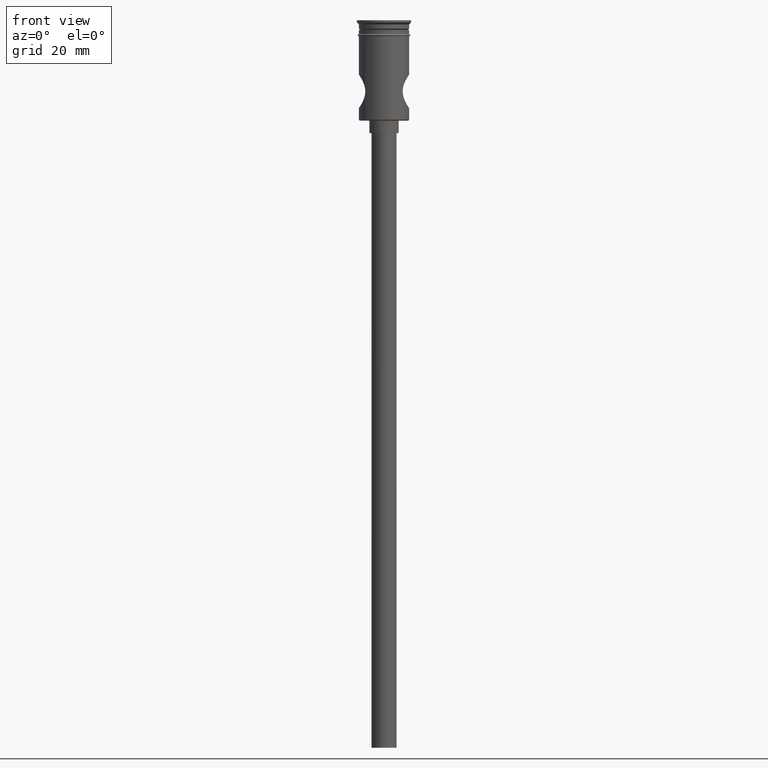
[diagram: clean part render]
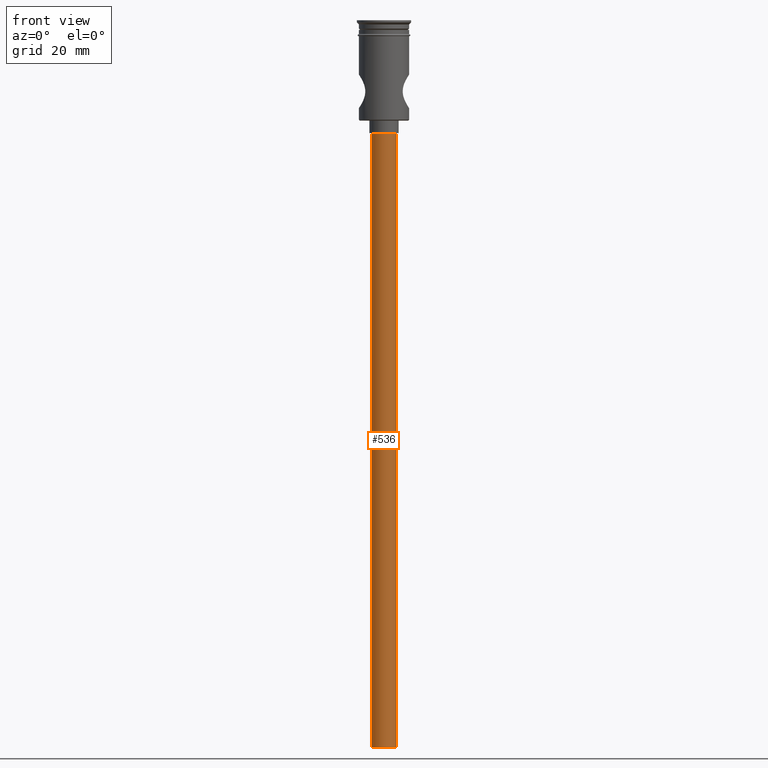
[diagram: same view with one face highlighted and labeled with its STEP entity id]
A machine part, front view. The second image highlights one B-rep face of the part: STEP entity #536.
In plain terms, the highlighted cylindrical surface (edge-blend (fillet) strip) has radius 3 mm, axis along (-0, -0, 1).
Its self-contained STEP definition (entity closure, byte-faithful):
#2 = ORIENTED_EDGE ( 'NONE', *, *, #1152, .T. ) ;
#159 = DIRECTION ( 'NONE',  ( -1.000000000000000000, 0.000000000000000000, 0.000000000000000000 ) ) ;
#195 = AXIS2_PLACEMENT_3D ( 'NONE', #1378, #808, #597 ) ;
#202 = VERTEX_POINT ( 'NONE', #1242 ) ;
#203 = CARTESIAN_POINT ( 'NONE',  ( 0.000000000000000000, 0.000000000000000000, -174.0000000000000000 ) ) ;
#243 = VECTOR ( 'NONE', #890, 1000.000000000000000 ) ;
#255 = DIRECTION ( 'NONE',  ( -1.000000000000000000, 0.000000000000000000, 0.000000000000000000 ) ) ;
#408 = DIRECTION ( 'NONE',  ( 0.000000000000000000, 0.000000000000000000, -1.000000000000000000 ) ) ;
#511 = DIRECTION ( 'NONE',  ( -0.000000000000000000, -0.000000000000000000, 1.000000000000000000 ) ) ;
#536 = ADVANCED_FACE ( 'NONE', ( #965 ), #1310, .T. ) ;
#597 = DIRECTION ( 'NONE',  ( 1.000000000000000000, 0.000000000000000000, 0.000000000000000000 ) ) ;
#634 = ORIENTED_EDGE ( 'NONE', *, *, #1292, .F. ) ;
#750 = CARTESIAN_POINT ( 'NONE',  ( -3.000000000000000444, 3.673940397442060361E-16, -174.0000000000000000 ) ) ;
#765 = VECTOR ( 'NONE', #511, 1000.000000000000000 ) ;
#794 = ORIENTED_EDGE ( 'NONE', *, *, #900, .T. ) ;
#802 = VERTEX_POINT ( 'NONE', #996 ) ;
#808 = DIRECTION ( 'NONE',  ( -0.000000000000000000, -0.000000000000000000, 1.000000000000000000 ) ) ;
#867 = VERTEX_POINT ( 'NONE', #1130 ) ;
#890 = DIRECTION ( 'NONE',  ( -0.000000000000000000, -0.000000000000000000, 1.000000000000000000 ) ) ;
#900 = EDGE_CURVE ( 'NONE', #802, #1194, #1336, .T. ) ;
#965 = FACE_OUTER_BOUND ( 'NONE', #1332, .T. ) ;
#996 = CARTESIAN_POINT ( 'NONE',  ( 3.000000000000000444, 0.000000000000000000, -174.0000000000000000 ) ) ;
#1058 = AXIS2_PLACEMENT_3D ( 'NONE', #1295, #408, #159 ) ;
#1129 = EDGE_CURVE ( 'NONE', #202, #867, #1289, .T. ) ;
#1130 = CARTESIAN_POINT ( 'NONE',  ( -3.000000000000000444, 3.673940397442060361E-16, -27.00000000000000000 ) ) ;
#1152 = EDGE_CURVE ( 'NONE', #1194, #867, #1182, .T. ) ;
#1182 = CIRCLE ( 'NONE', #1058, 3.000000000000000444 ) ;
#1194 = VERTEX_POINT ( 'NONE', #1413 ) ;
#1242 = CARTESIAN_POINT ( 'NONE',  ( -3.000000000000000444, 3.673940397442060361E-16, -174.0000000000000000 ) ) ;
#1289 = LINE ( 'NONE', #750, #765 ) ;
#1291 = CIRCLE ( 'NONE', #1312, 3.000000000000000444 ) ;
#1292 = EDGE_CURVE ( 'NONE', #802, #202, #1291, .T. ) ;
#1295 = CARTESIAN_POINT ( 'NONE',  ( 0.000000000000000000, 0.000000000000000000, -27.00000000000000000 ) ) ;
#1310 = CYLINDRICAL_SURFACE ( 'NONE', #195, 3.000000000000000444 ) ;
#1312 = AXIS2_PLACEMENT_3D ( 'NONE', #203, #1333, #255 ) ;
#1332 = EDGE_LOOP ( 'NONE', ( #1356, #634, #794, #2 ) ) ;
#1333 = DIRECTION ( 'NONE',  ( 0.000000000000000000, 0.000000000000000000, -1.000000000000000000 ) ) ;
#1336 = LINE ( 'NONE', #1462, #243 ) ;
#1356 = ORIENTED_EDGE ( 'NONE', *, *, #1129, .F. ) ;
#1378 = CARTESIAN_POINT ( 'NONE',  ( 0.000000000000000000, 0.000000000000000000, -174.0000000000000000 ) ) ;
#1413 = CARTESIAN_POINT ( 'NONE',  ( 3.000000000000000444, 0.000000000000000000, -27.00000000000000000 ) ) ;
#1462 = CARTESIAN_POINT ( 'NONE',  ( 3.000000000000000444, 0.000000000000000000, -174.0000000000000000 ) ) ;